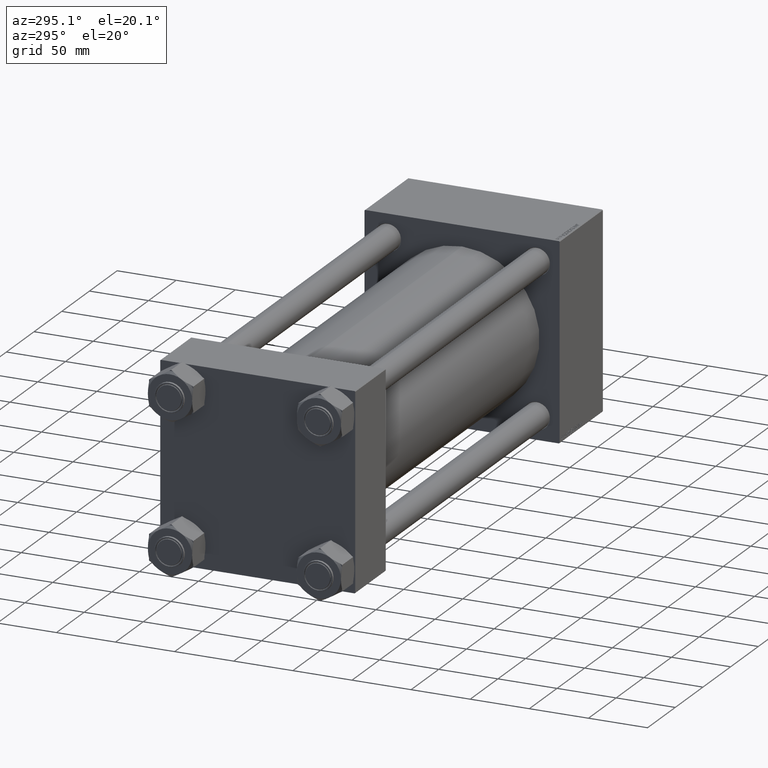
[diagram: clean part render]
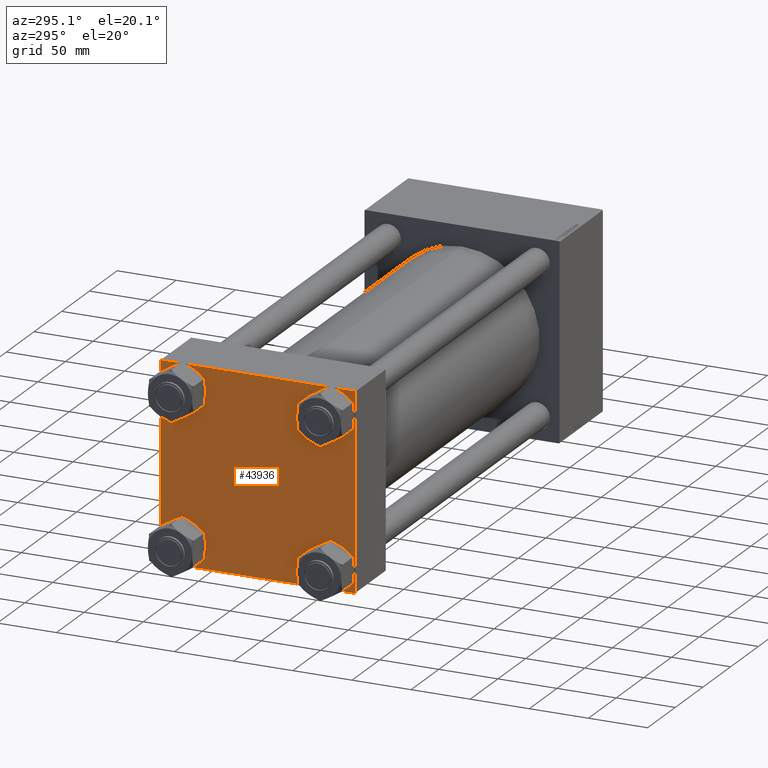
[diagram: same view with one face highlighted and labeled with its STEP entity id]
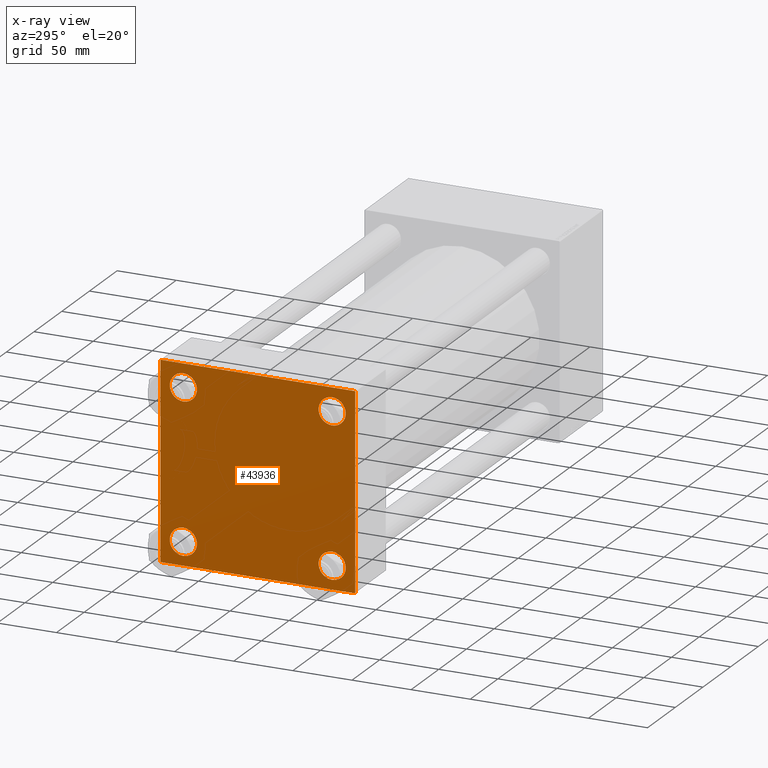
[diagram: x-ray of the same camera — body ghosted, the highlighted face saturated]
A machine part, auxiliary view. The second image highlights one B-rep face of the part: STEP entity #43936.
The next image is the same camera in x-ray: the body ghosted, the highlighted face saturated — about 0% of this face is hidden behind the body in this view.
In plain terms, the highlighted planar face has unit normal (-1, 0, 0).
Its self-contained STEP definition (entity closure, byte-faithful):
#1117 = VERTEX_POINT ( 'NONE', #10331 ) ;
#1514 = ORIENTED_EDGE ( 'NONE', *, *, #48258, .F. ) ;
#2105 = CARTESIAN_POINT ( 'NONE',  ( 0.000000000000000000, -62.94999999999998153, 62.95000000000001705 ) ) ;
#2390 = LINE ( 'NONE', #18071, #20747 ) ;
#2484 = AXIS2_PLACEMENT_3D ( 'NONE', #9725, #5628, #49356 ) ;
#2523 = DIRECTION ( 'NONE',  ( 1.000000000000000000, -0.000000000000000000, -0.000000000000000000 ) ) ;
#2543 = EDGE_LOOP ( 'NONE', ( #4342, #26716 ) ) ;
#2966 = LINE ( 'NONE', #42330, #15030 ) ;
#3127 = ORIENTED_EDGE ( 'NONE', *, *, #18945, .T. ) ;
#3379 = CARTESIAN_POINT ( 'NONE',  ( 0.000000000000000000, 82.50000000000002842, 82.50000000000002842 ) ) ;
#3553 = DIRECTION ( 'NONE',  ( 0.000000000000000000, 0.000000000000000000, 1.000000000000000000 ) ) ;
#4342 = ORIENTED_EDGE ( 'NONE', *, *, #41965, .T. ) ;
#4383 = EDGE_CURVE ( 'NONE', #37782, #8096, #14697, .T. ) ;
#4577 = ORIENTED_EDGE ( 'NONE', *, *, #11563, .T. ) ;
#4649 = DIRECTION ( 'NONE',  ( 1.000000000000000000, -0.000000000000000000, -0.000000000000000000 ) ) ;
#4685 = CARTESIAN_POINT ( 'NONE',  ( 0.000000000000000000, 82.25000000000002842, 82.25000000000002842 ) ) ;
#4741 = DIRECTION ( 'NONE',  ( 0.000000000000000000, 0.000000000000000000, -1.000000000000000000 ) ) ;
#4764 = AXIS2_PLACEMENT_3D ( 'NONE', #22323, #2523, #38027 ) ;
#5613 = ORIENTED_EDGE ( 'NONE', *, *, #11441, .T. ) ;
#5628 = DIRECTION ( 'NONE',  ( 1.000000000000000000, -0.000000000000000000, -0.000000000000000000 ) ) ;
#5770 = VERTEX_POINT ( 'NONE', #30128 ) ;
#6257 = CIRCLE ( 'NONE', #12010, 11.50000000000001066 ) ;
#6951 = VERTEX_POINT ( 'NONE', #14608 ) ;
#7432 = DIRECTION ( 'NONE',  ( 0.000000000000000000, 0.000000000000000000, 1.000000000000000000 ) ) ;
#7558 = DIRECTION ( 'NONE',  ( -0.000000000000000000, -0.7071067811865474617, -0.7071067811865474617 ) ) ;
#7943 = CARTESIAN_POINT ( 'NONE',  ( 0.000000000000000000, -62.94999999999998153, -62.95000000000001705 ) ) ;
#8096 = VERTEX_POINT ( 'NONE', #28714 ) ;
#8137 = LINE ( 'NONE', #39545, #12077 ) ;
#8756 = CARTESIAN_POINT ( 'NONE',  ( 0.000000000000000000, -62.94999999999998153, 62.95000000000001705 ) ) ;
#8841 = LINE ( 'NONE', #40002, #23194 ) ;
#9312 = VERTEX_POINT ( 'NONE', #39734 ) ;
#9437 = FACE_BOUND ( 'NONE', #2543, .T. ) ;
#9725 = CARTESIAN_POINT ( 'NONE',  ( 0.000000000000000000, -62.94999999999998153, -62.95000000000001705 ) ) ;
#10315 = DIRECTION ( 'NONE',  ( 0.000000000000000000, 0.000000000000000000, 1.000000000000000000 ) ) ;
#10331 = CARTESIAN_POINT ( 'NONE',  ( 0.000000000000000000, -82.49999999999997158, 82.00000000000001421 ) ) ;
#10516 = CARTESIAN_POINT ( 'NONE',  ( 0.000000000000000000, -82.49999999999997158, 82.50000000000001421 ) ) ;
#10930 = CARTESIAN_POINT ( 'NONE',  ( 0.000000000000000000, -62.94999999999998153, 51.45000000000000995 ) ) ;
#11234 = ORIENTED_EDGE ( 'NONE', *, *, #21977, .T. ) ;
#11441 = EDGE_CURVE ( 'NONE', #5770, #21687, #8841, .T. ) ;
#11496 = VECTOR ( 'NONE', #48427, 1000.000000000000114 ) ;
#11563 = EDGE_CURVE ( 'NONE', #34275, #32120, #2390, .T. ) ;
#12010 = AXIS2_PLACEMENT_3D ( 'NONE', #8756, #20594, #36304 ) ;
#12077 = VECTOR ( 'NONE', #31825, 1000.000000000000114 ) ;
#12459 = CARTESIAN_POINT ( 'NONE',  ( 0.000000000000000000, 82.00000000000005684, -82.49999999999997158 ) ) ;
#13546 = CARTESIAN_POINT ( 'NONE',  ( 0.000000000000000000, 0.000000000000000000, 0.000000000000000000 ) ) ;
#14200 = EDGE_CURVE ( 'NONE', #21687, #29510, #2966, .T. ) ;
#14608 = CARTESIAN_POINT ( 'NONE',  ( 0.000000000000000000, -62.94999999999998153, 74.45000000000003126 ) ) ;
#14697 = LINE ( 'NONE', #3379, #18935 ) ;
#15030 = VECTOR ( 'NONE', #7558, 1000.000000000000114 ) ;
#15972 = VERTEX_POINT ( 'NONE', #50604 ) ;
#16375 = DIRECTION ( 'NONE',  ( -1.000000000000000000, 0.000000000000000000, 0.000000000000000000 ) ) ;
#16987 = ORIENTED_EDGE ( 'NONE', *, *, #28247, .T. ) ;
#17015 = ORIENTED_EDGE ( 'NONE', *, *, #24656, .T. ) ;
#17996 = VERTEX_POINT ( 'NONE', #19980 ) ;
#18071 = CARTESIAN_POINT ( 'NONE',  ( 0.000000000000000000, -82.25000000000115108, -82.24999999999886313 ) ) ;
#18860 = CIRCLE ( 'NONE', #22137, 11.50000000000001066 ) ;
#18935 = VECTOR ( 'NONE', #34519, 1000.000000000000000 ) ;
#18945 = EDGE_CURVE ( 'NONE', #24820, #17996, #33348, .T. ) ;
#19297 = CARTESIAN_POINT ( 'NONE',  ( 0.000000000000000000, 82.50000000000002842, -82.00000000000000000 ) ) ;
#19980 = CARTESIAN_POINT ( 'NONE',  ( 0.000000000000000000, 62.95000000000000284, -74.45000000000001705 ) ) ;
#20594 = DIRECTION ( 'NONE',  ( 1.000000000000000000, -0.000000000000000000, -0.000000000000000000 ) ) ;
#20747 = VECTOR ( 'NONE', #28928, 999.9999999999998863 ) ;
#21238 = EDGE_LOOP ( 'NONE', ( #16987, #23602 ) ) ;
#21687 = VERTEX_POINT ( 'NONE', #19297 ) ;
#21880 = AXIS2_PLACEMENT_3D ( 'NONE', #23104, #42914, #3553 ) ;
#21977 = EDGE_CURVE ( 'NONE', #17996, #24820, #44075, .T. ) ;
#22137 = AXIS2_PLACEMENT_3D ( 'NONE', #2105, #26263, #10315 ) ;
#22323 = CARTESIAN_POINT ( 'NONE',  ( 0.000000000000000000, 62.95000000000000284, 62.95000000000000284 ) ) ;
#22841 = AXIS2_PLACEMENT_3D ( 'NONE', #7943, #47333, #7432 ) ;
#23104 = CARTESIAN_POINT ( 'NONE',  ( 0.000000000000000000, 62.95000000000000284, -62.95000000000000284 ) ) ;
#23194 = VECTOR ( 'NONE', #4741, 1000.000000000000000 ) ;
#23438 = ORIENTED_EDGE ( 'NONE', *, *, #14200, .T. ) ;
#23602 = ORIENTED_EDGE ( 'NONE', *, *, #33765, .T. ) ;
#23935 = CARTESIAN_POINT ( 'NONE',  ( 0.000000000000000000, 62.95000000000000284, 62.95000000000000284 ) ) ;
#24241 = LINE ( 'NONE', #32226, #39275 ) ;
#24656 = EDGE_CURVE ( 'NONE', #40010, #6951, #6257, .T. ) ;
#24820 = VERTEX_POINT ( 'NONE', #48657 ) ;
#25134 = FACE_BOUND ( 'NONE', #44787, .T. ) ;
#25310 = CIRCLE ( 'NONE', #22841, 11.50000000000001066 ) ;
#25558 = AXIS2_PLACEMENT_3D ( 'NONE', #13546, #16375, #32091 ) ;
#25605 = CARTESIAN_POINT ( 'NONE',  ( 0.000000000000000000, 62.95000000000000284, 74.45000000000001705 ) ) ;
#25606 = DIRECTION ( 'NONE',  ( 1.000000000000000000, -0.000000000000000000, -0.000000000000000000 ) ) ;
#26086 = CIRCLE ( 'NONE', #4764, 11.50000000000001066 ) ;
#26263 = DIRECTION ( 'NONE',  ( 1.000000000000000000, -0.000000000000000000, -0.000000000000000000 ) ) ;
#26543 = ORIENTED_EDGE ( 'NONE', *, *, #42379, .T. ) ;
#26716 = ORIENTED_EDGE ( 'NONE', *, *, #32788, .T. ) ;
#26789 = EDGE_LOOP ( 'NONE', ( #5613, #23438, #31284, #4577, #1514, #41715, #27248, #26543 ) ) ;
#27248 = ORIENTED_EDGE ( 'NONE', *, *, #4383, .F. ) ;
#27396 = EDGE_CURVE ( 'NONE', #1117, #8096, #8137, .T. ) ;
#27735 = CARTESIAN_POINT ( 'NONE',  ( 0.000000000000000000, -82.00000000000000000, -82.50000000000000000 ) ) ;
#28247 = EDGE_CURVE ( 'NONE', #31098, #9312, #26086, .T. ) ;
#28414 = CARTESIAN_POINT ( 'NONE',  ( 0.000000000000000000, -82.50000000000000000, -81.99999999999998579 ) ) ;
#28630 = AXIS2_PLACEMENT_3D ( 'NONE', #23935, #4649, #39381 ) ;
#28714 = CARTESIAN_POINT ( 'NONE',  ( 0.000000000000000000, -81.99999999999997158, 82.50000000000001421 ) ) ;
#28928 = DIRECTION ( 'NONE',  ( 0.000000000000000000, -0.7071067811865376918, 0.7071067811865574537 ) ) ;
#28991 = VECTOR ( 'NONE', #41925, 1000.000000000000000 ) ;
#29014 = EDGE_CURVE ( 'NONE', #29510, #34275, #24241, .T. ) ;
#29510 = VERTEX_POINT ( 'NONE', #12459 ) ;
#30128 = CARTESIAN_POINT ( 'NONE',  ( 0.000000000000000000, 82.50000000000002842, 82.00000000000005684 ) ) ;
#31098 = VERTEX_POINT ( 'NONE', #25605 ) ;
#31101 = CIRCLE ( 'NONE', #28630, 11.50000000000001066 ) ;
#31116 = CARTESIAN_POINT ( 'NONE',  ( 0.000000000000000000, 82.00000000000005684, 82.50000000000002842 ) ) ;
#31245 = CIRCLE ( 'NONE', #2484, 11.50000000000001066 ) ;
#31284 = ORIENTED_EDGE ( 'NONE', *, *, #29014, .T. ) ;
#31342 = LINE ( 'NONE', #10516, #28991 ) ;
#31825 = DIRECTION ( 'NONE',  ( -0.000000000000000000, 0.7071067811865474617, 0.7071067811865474617 ) ) ;
#32091 = DIRECTION ( 'NONE',  ( 0.000000000000000000, 0.000000000000000000, 1.000000000000000000 ) ) ;
#32120 = VERTEX_POINT ( 'NONE', #28414 ) ;
#32226 = CARTESIAN_POINT ( 'NONE',  ( 0.000000000000000000, 82.50000000000002842, -82.49999999999997158 ) ) ;
#32301 = VERTEX_POINT ( 'NONE', #50495 ) ;
#32722 = LINE ( 'NONE', #4685, #11496 ) ;
#32788 = EDGE_CURVE ( 'NONE', #15972, #32301, #25310, .T. ) ;
#33332 = DIRECTION ( 'NONE',  ( 0.000000000000000000, 0.000000000000000000, 1.000000000000000000 ) ) ;
#33348 = CIRCLE ( 'NONE', #41534, 11.50000000000001066 ) ;
#33765 = EDGE_CURVE ( 'NONE', #9312, #31098, #31101, .T. ) ;
#34275 = VERTEX_POINT ( 'NONE', #27735 ) ;
#34519 = DIRECTION ( 'NONE',  ( 0.000000000000000000, -1.000000000000000000, -8.410780489584519171E-17 ) ) ;
#36279 = EDGE_LOOP ( 'NONE', ( #38755, #17015 ) ) ;
#36304 = DIRECTION ( 'NONE',  ( 0.000000000000000000, 0.000000000000000000, 1.000000000000000000 ) ) ;
#36974 = PLANE ( 'NONE',  #25558 ) ;
#37228 = FACE_OUTER_BOUND ( 'NONE', #26789, .T. ) ;
#37444 = CARTESIAN_POINT ( 'NONE',  ( 0.000000000000000000, 62.95000000000000284, -62.95000000000000284 ) ) ;
#37782 = VERTEX_POINT ( 'NONE', #31116 ) ;
#38027 = DIRECTION ( 'NONE',  ( 0.000000000000000000, 0.000000000000000000, 1.000000000000000000 ) ) ;
#38755 = ORIENTED_EDGE ( 'NONE', *, *, #40479, .T. ) ;
#39275 = VECTOR ( 'NONE', #39958, 1000.000000000000000 ) ;
#39381 = DIRECTION ( 'NONE',  ( 0.000000000000000000, 0.000000000000000000, 1.000000000000000000 ) ) ;
#39545 = CARTESIAN_POINT ( 'NONE',  ( 0.000000000000000000, -82.25000000000000000, 82.25000000000000000 ) ) ;
#39734 = CARTESIAN_POINT ( 'NONE',  ( 0.000000000000000000, 62.95000000000000284, 51.44999999999999574 ) ) ;
#39958 = DIRECTION ( 'NONE',  ( 0.000000000000000000, -1.000000000000000000, -1.682156097916903588E-16 ) ) ;
#40002 = CARTESIAN_POINT ( 'NONE',  ( 0.000000000000000000, 82.50000000000002842, 82.50000000000002842 ) ) ;
#40010 = VERTEX_POINT ( 'NONE', #10930 ) ;
#40479 = EDGE_CURVE ( 'NONE', #6951, #40010, #18860, .T. ) ;
#40843 = FACE_BOUND ( 'NONE', #21238, .T. ) ;
#41534 = AXIS2_PLACEMENT_3D ( 'NONE', #37444, #25606, #33332 ) ;
#41715 = ORIENTED_EDGE ( 'NONE', *, *, #27396, .T. ) ;
#41925 = DIRECTION ( 'NONE',  ( 0.000000000000000000, -1.682156097916903588E-16, -1.000000000000000000 ) ) ;
#41965 = EDGE_CURVE ( 'NONE', #32301, #15972, #31245, .T. ) ;
#42330 = CARTESIAN_POINT ( 'NONE',  ( 0.000000000000000000, 82.25000000000001421, -82.25000000000001421 ) ) ;
#42379 = EDGE_CURVE ( 'NONE', #37782, #5770, #32722, .T. ) ;
#42914 = DIRECTION ( 'NONE',  ( 1.000000000000000000, -0.000000000000000000, -0.000000000000000000 ) ) ;
#43936 = ADVANCED_FACE ( 'NONE', ( #44703, #9437, #25134, #40843, #37228 ), #36974, .T. ) ;
#44075 = CIRCLE ( 'NONE', #21880, 11.50000000000001066 ) ;
#44703 = FACE_BOUND ( 'NONE', #36279, .T. ) ;
#44787 = EDGE_LOOP ( 'NONE', ( #3127, #11234 ) ) ;
#47333 = DIRECTION ( 'NONE',  ( 1.000000000000000000, -0.000000000000000000, -0.000000000000000000 ) ) ;
#48258 = EDGE_CURVE ( 'NONE', #1117, #32120, #31342, .T. ) ;
#48427 = DIRECTION ( 'NONE',  ( 0.000000000000000000, 0.7071067811865474617, -0.7071067811865474617 ) ) ;
#48657 = CARTESIAN_POINT ( 'NONE',  ( 0.000000000000000000, 62.95000000000000284, -51.44999999999999574 ) ) ;
#49356 = DIRECTION ( 'NONE',  ( 0.000000000000000000, 0.000000000000000000, 1.000000000000000000 ) ) ;
#50495 = CARTESIAN_POINT ( 'NONE',  ( 0.000000000000000000, -62.94999999999998153, -51.45000000000000995 ) ) ;
#50604 = CARTESIAN_POINT ( 'NONE',  ( 0.000000000000000000, -62.94999999999998153, -74.45000000000003126 ) ) ;